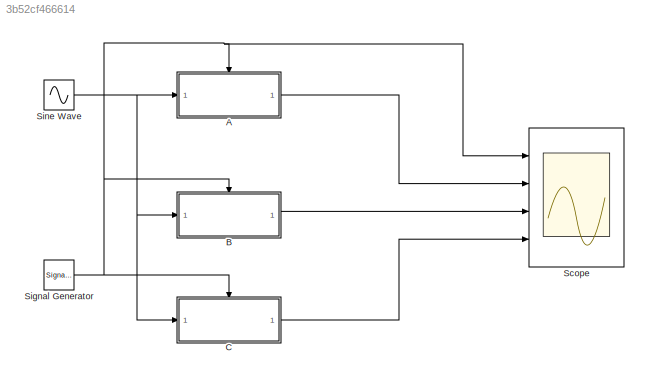
MODEL slx_3b52cf466614
KIND model
CONFIG AbsTol = auto
CONFIG EnableMultiTasking = off
CONFIG FixedStep = auto
CONFIG MaxStep = 0.01
CONFIG MinStep = auto
CONFIG RelTol = 1e-3
CONFIG SampleTimeConstraint = Unconstrained
CONFIG Solver = VariableStepAuto
CONFIG SolverName = VariableStepAuto
CONFIG StartTime = 0.0
CONFIG StopTime = 10.0
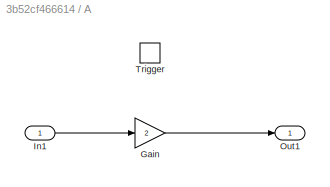
BLOCK [SubSystem] A
  Ports = [1, 1, 0, 1]
  RequestExecContextInheritance = off
  TreatAsAtomicUnit = on
BLOCK [Gain] A/Gain
  Gain = 2
  OutDataTypeStr = Inherit: Inherit via internal rule
  ParamDataTypeStr = Inherit: Inherit via internal rule
  SaturateOnIntegerOverflow = off
BLOCK [Inport] A/In1
  IconDisplay = Port number
BLOCK [Outport] A/Out1
  IconDisplay = Port number
BLOCK [TriggerPort] A/Trigger
  Ports = []
  StatesWhenEnabling = held
  VariantControl = Variant
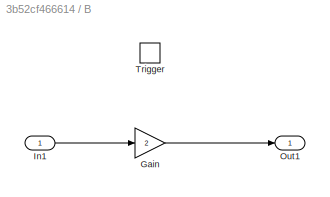
BLOCK [SubSystem] B
  Ports = [1, 1, 0, 1]
  RequestExecContextInheritance = off
  TreatAsAtomicUnit = on
BLOCK [Gain] B/Gain
  Gain = 2
  OutDataTypeStr = Inherit: Inherit via internal rule
  ParamDataTypeStr = Inherit: Inherit via internal rule
  SaturateOnIntegerOverflow = off
BLOCK [Inport] B/In1
  IconDisplay = Port number
BLOCK [Outport] B/Out1
  IconDisplay = Port number
BLOCK [TriggerPort] B/Trigger
  Ports = []
  StatesWhenEnabling = held
  TriggerType = falling
  VariantControl = Variant
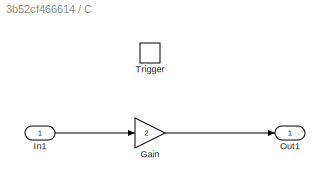
BLOCK [SubSystem] C
  Ports = [1, 1, 0, 1]
  RequestExecContextInheritance = off
  TreatAsAtomicUnit = on
BLOCK [Gain] C/Gain
  Gain = 2
  OutDataTypeStr = Inherit: Inherit via internal rule
  ParamDataTypeStr = Inherit: Inherit via internal rule
  SaturateOnIntegerOverflow = off
BLOCK [Inport] C/In1
  IconDisplay = Port number
BLOCK [Outport] C/Out1
  IconDisplay = Port number
BLOCK [TriggerPort] C/Trigger
  Ports = []
  StatesWhenEnabling = held
  TriggerType = either
  VariantControl = Variant
BLOCK [Scope] Scope
  Floating = off
  NumInputPorts = 4
  Ports = [4]
  ScopeSpecificationString = Simulink.scopes.TimeScopeBlockCfg('CurrentConfiguration', extmgr.ConfigurationSet(extmgr.Configuration('Core','General UI',true),extmgr.Configuration('Core','Source UI',true),extmgr.Configuration('Sources','WiredSimulink',true),extmgr.Configuration('Visuals','Time Domain',true,'SerializedDisplays',{struct('MinYLimReal','-1.25','MaxYLimReal','1.25','YLabelReal','','MinYLimMag','0.00000','MaxYLimMag...<+3337ch>
BLOCK [SignalGenerator] Signal Generator
  Ports = [0, 1]
  WaveForm = square
BLOCK [Sin] Sine Wave
  Frequency = 8
  Ports = [0, 1]
  SampleTime = 0
LINE A/Gain:1 -> A/Out1:1
LINE A/In1:1 -> A/Gain:1
LINE A:1 -> Scope:2
LINE B/Gain:1 -> B/Out1:1
LINE B/In1:1 -> B/Gain:1
LINE B:1 -> Scope:3
LINE C/Gain:1 -> C/Out1:1
LINE C/In1:1 -> C/Gain:1
LINE C:1 -> Scope:4
NET Signal Generator:1 -> A:trigger, B:trigger, C:trigger, Scope:1
NET Sine Wave:1 -> A:1, B:1, C:1
note: NET lines group one-source signal fan-out (src -> all destinations, sorted); 1:1 wires keep LINE
